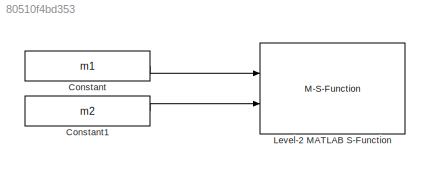
MODEL slx_80510f4bd353
KIND model
CONFIG InitFcn = m1 = imread('ˆ¢•z?à½.jpg'); \nm1 = m1(:,:,1); \nm2 = imread('äˆ‰¢—¢?.jpg'); \nm2 = m2(:,:,1); 
BLOCK [Constant] Constant
  Value = m1
BLOCK [Constant] Constant1
  Value = m2
BLOCK [M-S-Function] Level-2 MATLAB S-Function
  FunctionName = sfun_image_merge
  Ports = [2]
LINE Constant1:1 -> Level-2 MATLAB S-Function:2
LINE Constant:1 -> Level-2 MATLAB S-Function:1
